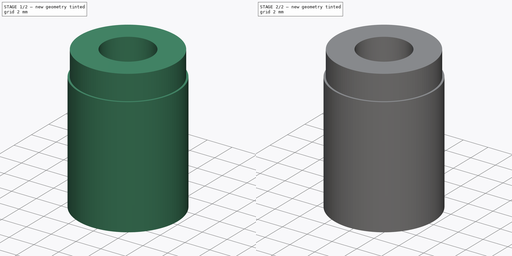
[diagram: build sequence overview — one tinted view per stage of 2, left to right]
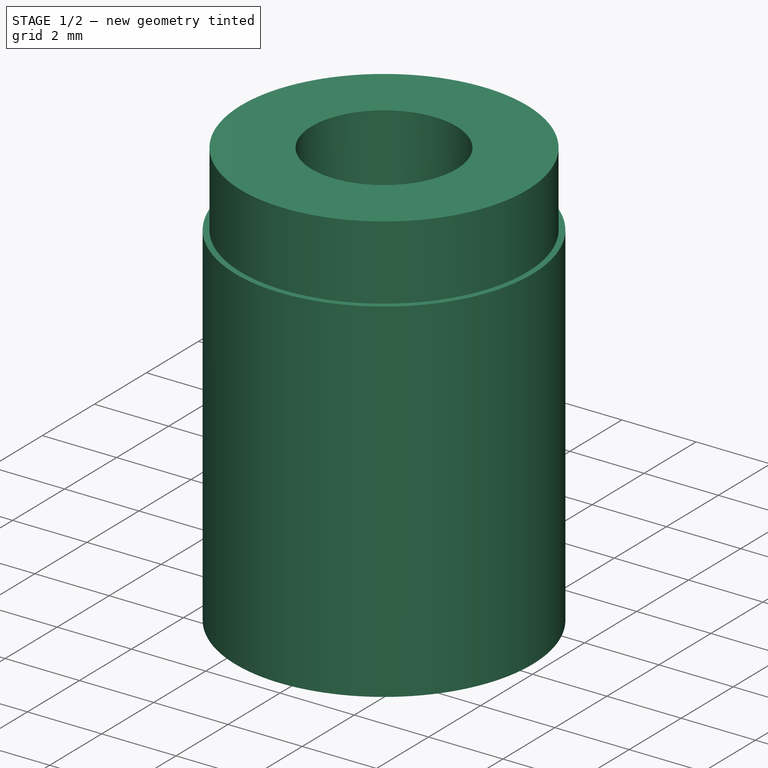
[diagram: stage 1 of 2 — iso view after this stage's code; geometry added in this stage tinted green]
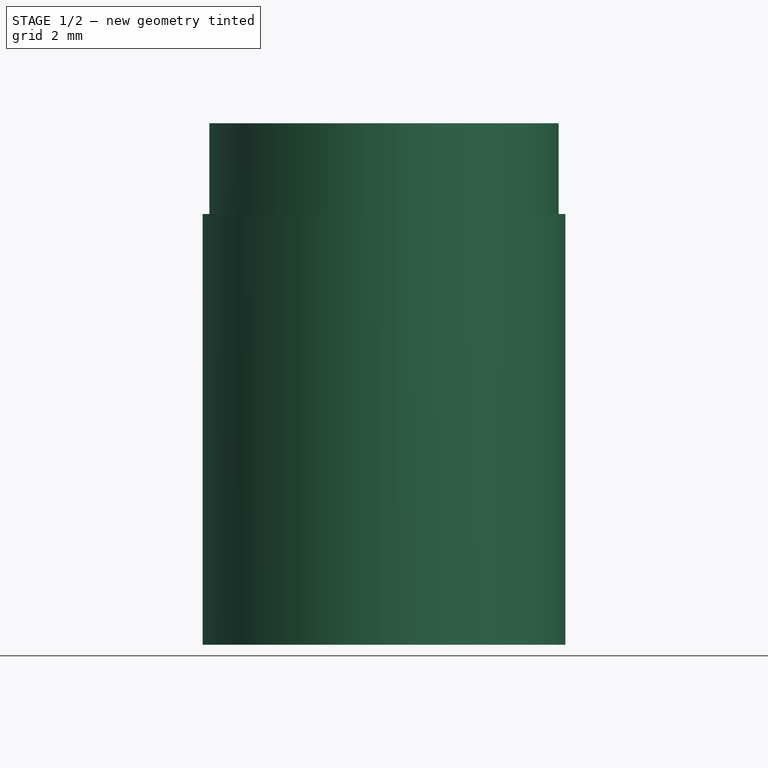
[diagram: stage 1 of 2 — front view after this stage's code; geometry added in this stage tinted green]
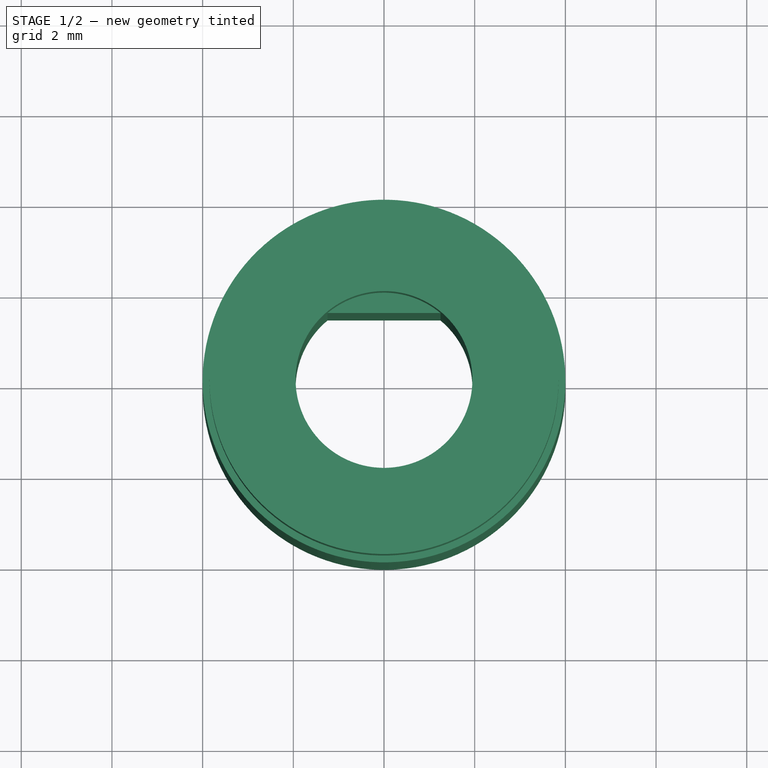
[diagram: stage 1 of 2 — top view after this stage's code; geometry added in this stage tinted green]
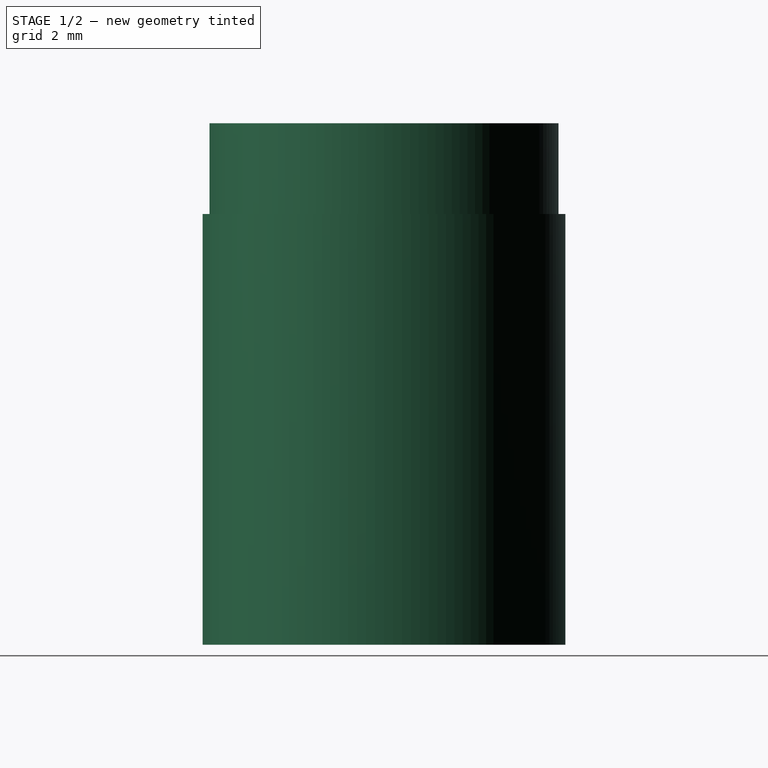
[diagram: stage 1 of 2 — right view after this stage's code; geometry added in this stage tinted green]
FCSTD DOCUMENT  (FreeCAD 0.21R33668 +26 (Git))
Label: Adaptateur_roue
License: All rights reserved
LicenseURL: https://en.wikipedia.org/wiki/All_rights_reserved
objects: Sketcher::SketchObject×3, PartDesign::Pad×2, PartDesign::Pocket×1, PartDesign::Body×1
note: 10 computed .brp shape members not serialized (recipe doc carries the construction recipe); baked Part::Feature solids carry a one-line shape summary decoded from their .brp

FEATURE [Sketcher::SketchObject] Sketch268
  FullyConstrained = true
  MapMode = 5
  Support = -> [XY_Plane361]
  sketch-geometry (3):
    g0: Circle CenterX=0 CenterY=0 CenterZ=0 NormalX=0 NormalY=0 NormalZ=1 AngleXU=0 Radius=4
    g1: LineSegment StartX=-1.24599 StartY=1.5 StartZ=0 EndX=1.24599 EndY=1.5 EndZ=0
    g2: ArcOfCircle CenterX=0 CenterY=0 CenterZ=0 NormalX=0 NormalY=0 NormalZ=1 AngleXU=0 Radius=1.95 StartAngle=2.26396 EndAngle=7.16082
  constraints (8):
    c: Coincident(g0,g-1)
    c: Diameter(g0) = 8
    c: Horizontal(g1)
    c: Coincident(g2,g0)
    c: Coincident(g2,g1)
    c: Coincident(g2,g1)
    c: Diameter(g2) = 3.9
    c: DistanceY(g0,g1) = 1.5
FEATURE [PartDesign::Pad] Pad107
  Direction = (0,0,1)
  Length = 9.5
  Length2 = 10
  Profile = -> Sketch268
  ReferenceAxis = -> Sketch268 [N_Axis]
  Type = 0
FEATURE [Sketcher::SketchObject] Sketch269
  ExternalGeometry = -> [Pad107]
  FullyConstrained = true
  MapMode = 5
  Placement = pos=(0,0,9.5) rot=(0,0,1;0rad)
  Support = -> [Pad107]
  sketch-geometry (2):
    g0: Circle CenterX=0 CenterY=0 CenterZ=0 NormalX=0 NormalY=0 NormalZ=1 AngleXU=0 Radius=3.85
    g1: Circle CenterX=0 CenterY=0 CenterZ=0 NormalX=0 NormalY=0 NormalZ=1 AngleXU=0 Radius=1.95
  constraints (4):
    c: Coincident(g0,g-3)
    c: Coincident(g1,g0)
    c: PointOnObject(g-4,g1)
    c: Diameter(g0) = 7.7
FEATURE [PartDesign::Pad] Pad108
  BaseFeature = -> Pad107
  Direction = (0,0,1)
  Length = 2
  Length2 = 10
  Profile = -> Sketch269
  ReferenceAxis = -> Sketch269 [N_Axis]
  Type = 0
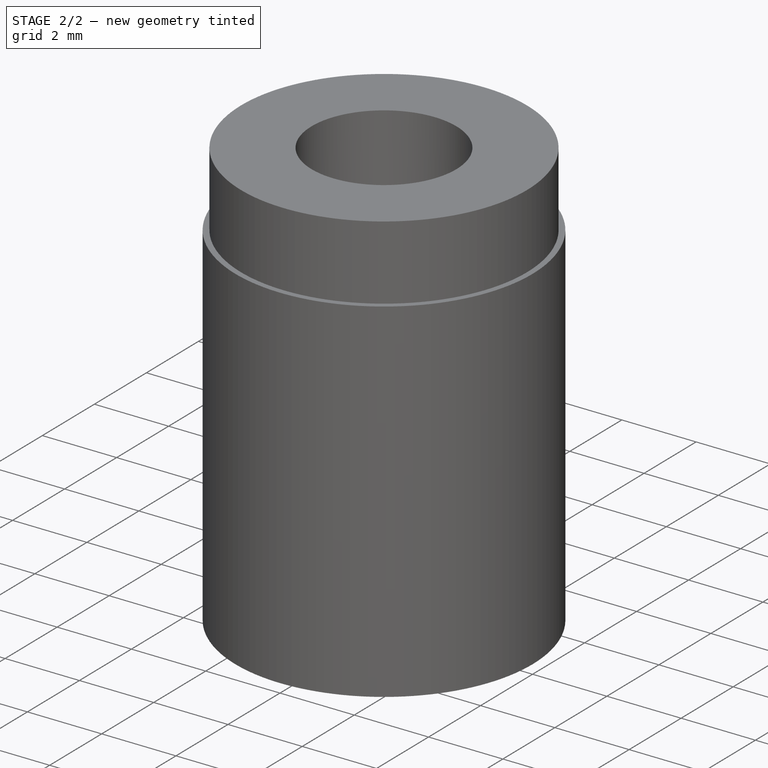
[diagram: stage 2 of 2 — iso view after this stage's code; geometry added in this stage tinted green]
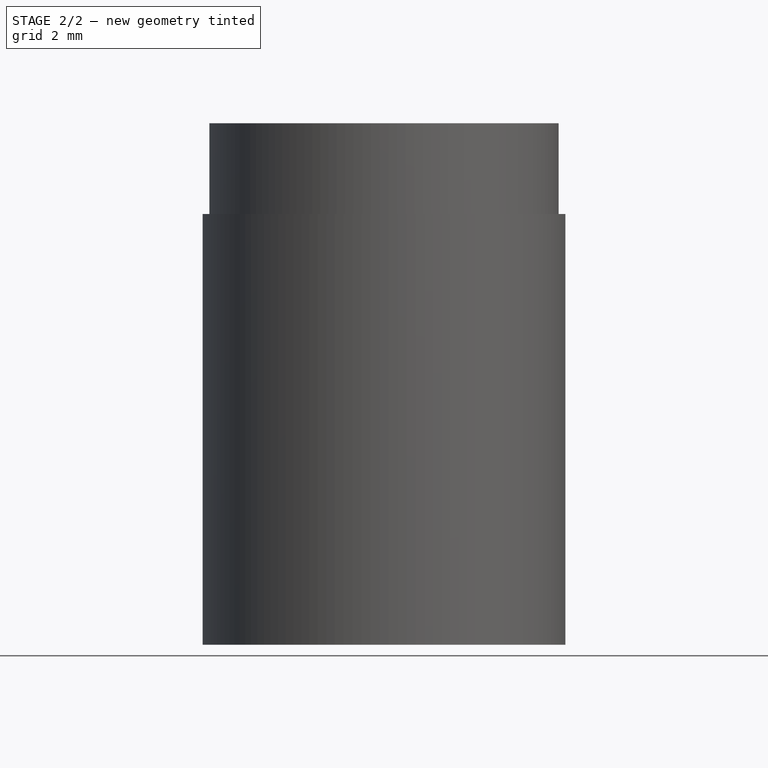
[diagram: stage 2 of 2 — front view after this stage's code; geometry added in this stage tinted green]
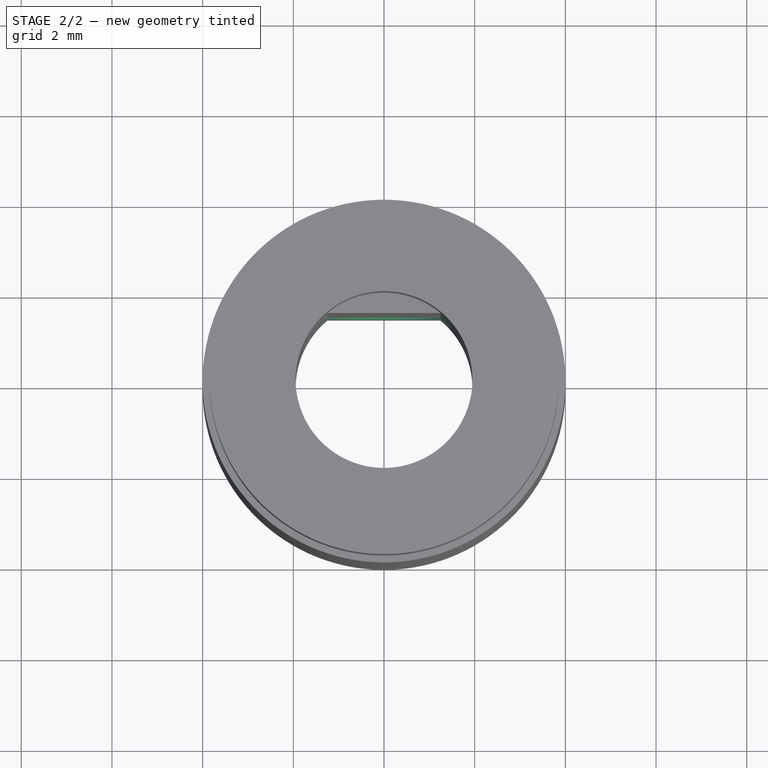
[diagram: stage 2 of 2 — top view after this stage's code; geometry added in this stage tinted green]
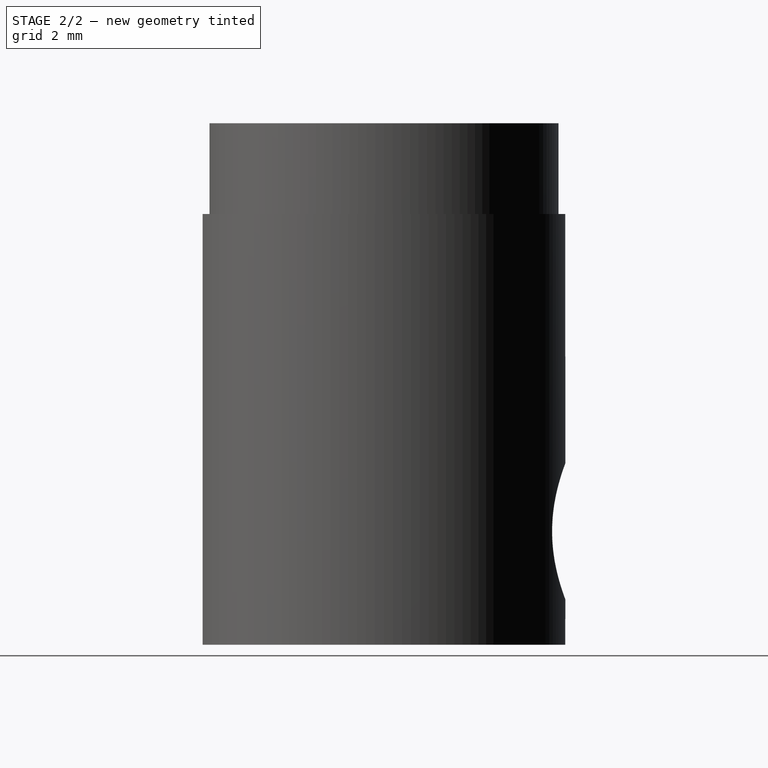
[diagram: stage 2 of 2 — right view after this stage's code; geometry added in this stage tinted green]
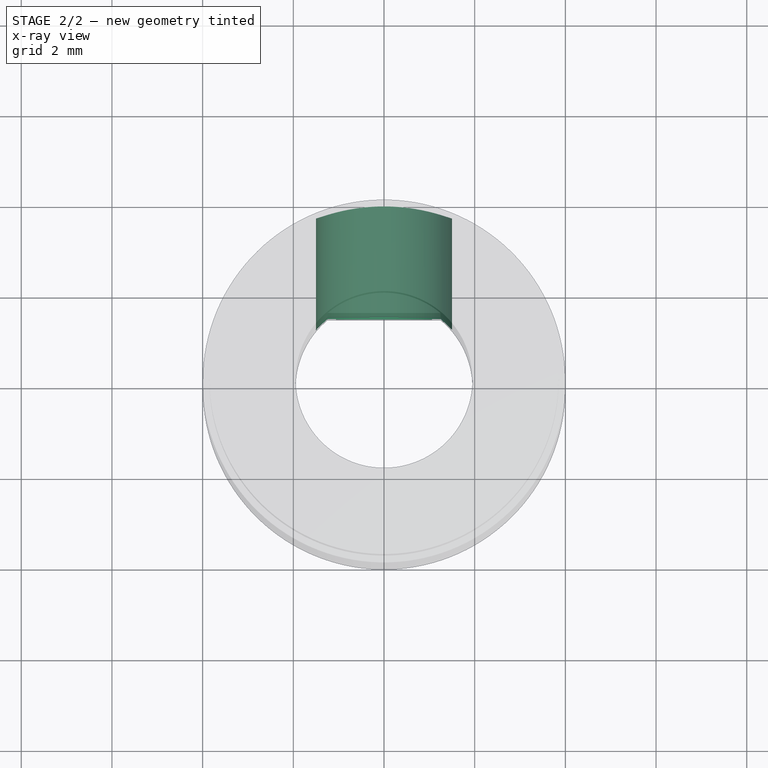
[diagram: stage 2 of 2 — x-ray composite at the top view; earlier geometry ghosted, this stage's added geometry solid]
FEATURE [Sketcher::SketchObject] Sketch270
  FullyConstrained = true
  MapMode = 5
  Placement = pos=(0,0,0) rot=(1,0,0;1.5708rad)
  Support = -> [XZ_Plane361]
  sketch-geometry (1):
    g0: Circle CenterX=0 CenterY=2.5 CenterZ=0 NormalX=0 NormalY=0 NormalZ=1 AngleXU=0 Radius=1.5
  constraints (3):
    c: PointOnObject(g0,g-2)
    c: Diameter(g0) = 3
    c: DistanceY(g-1,g0) = 2.5
FEATURE [PartDesign::Pocket] Pocket131
  BaseFeature = -> Pad108
  Direction = (0,1,2e-16)
  Length = 5
  Length2 = 5
  Profile = -> Sketch270
  ReferenceAxis = -> Sketch270 [N_Axis]
  Type = 1
FEATURE [PartDesign::Body] Body096  label="Adaptateur 1"
  Group = -> [Sketch268,Pad107,Sketch269,Pad108,Sketch270,Pocket131]
  Origin = -> Origin361
  Tip = -> Pocket131
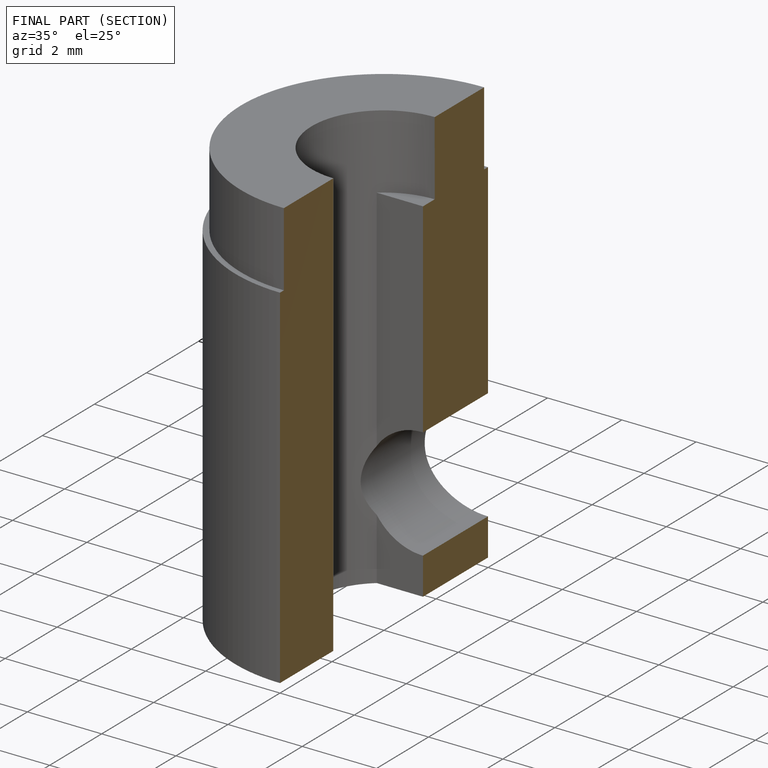
[diagram: finished part — half-section view (interior)]
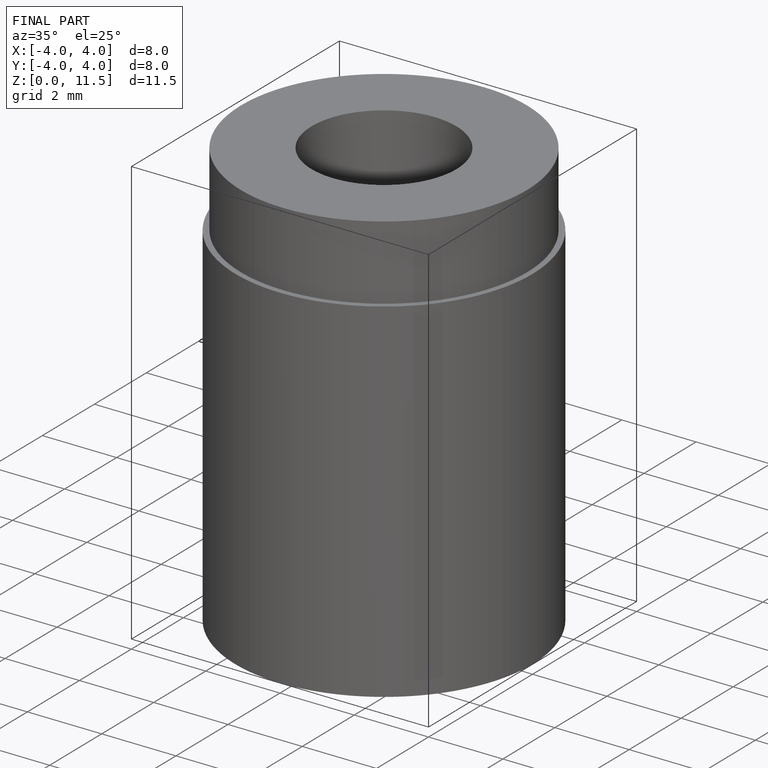
[diagram: finished part — iso view with bounding-box wireframe]
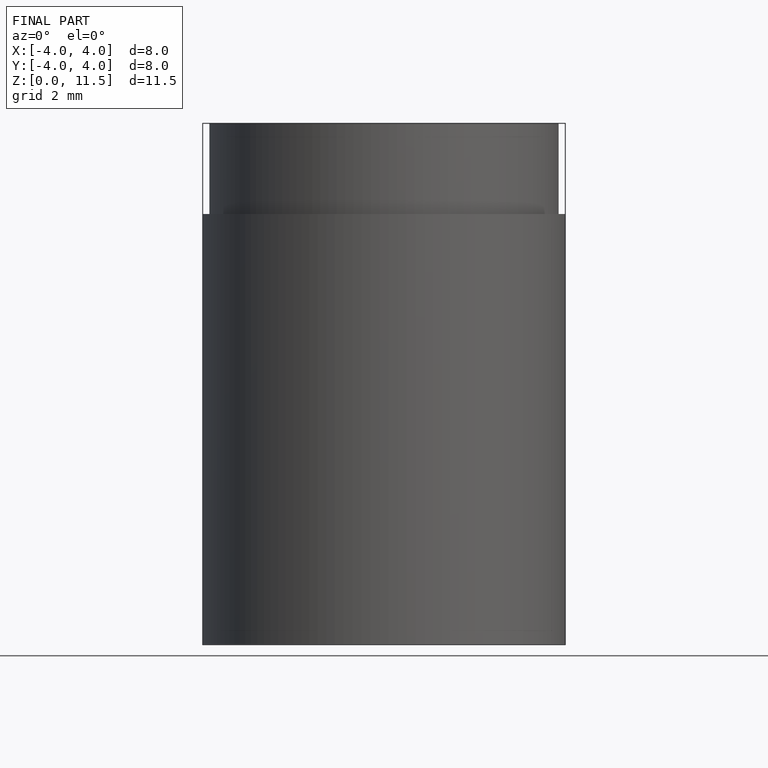
[diagram: finished part — front view with bounding-box wireframe]
